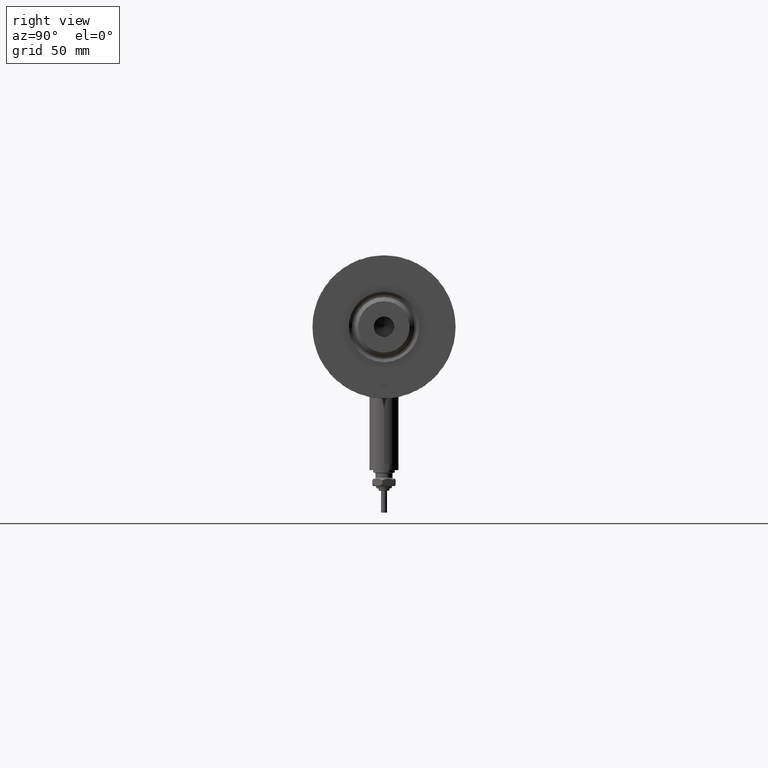
[diagram: clean part render]
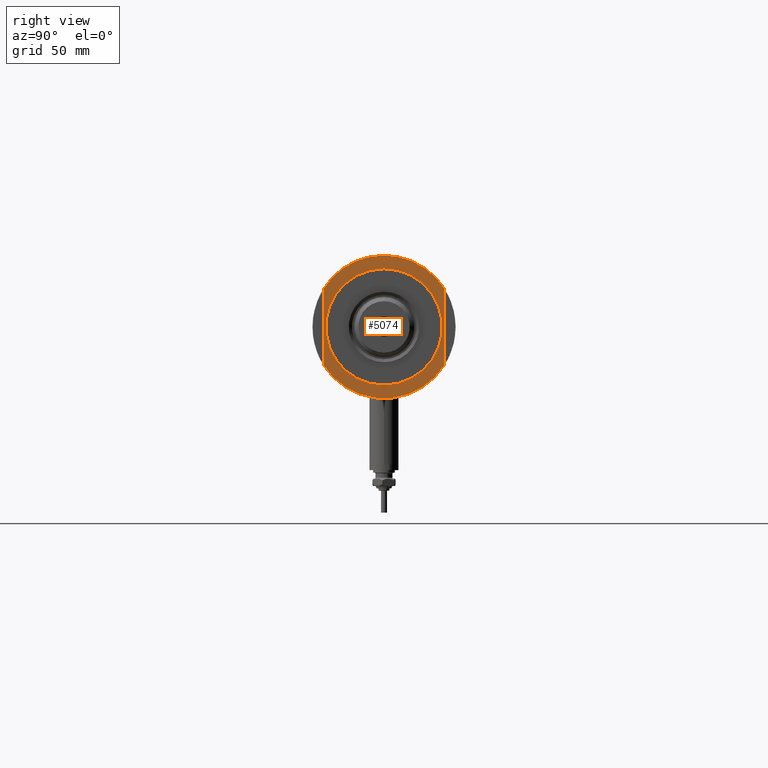
[diagram: same view with one face highlighted and labeled with its STEP entity id]
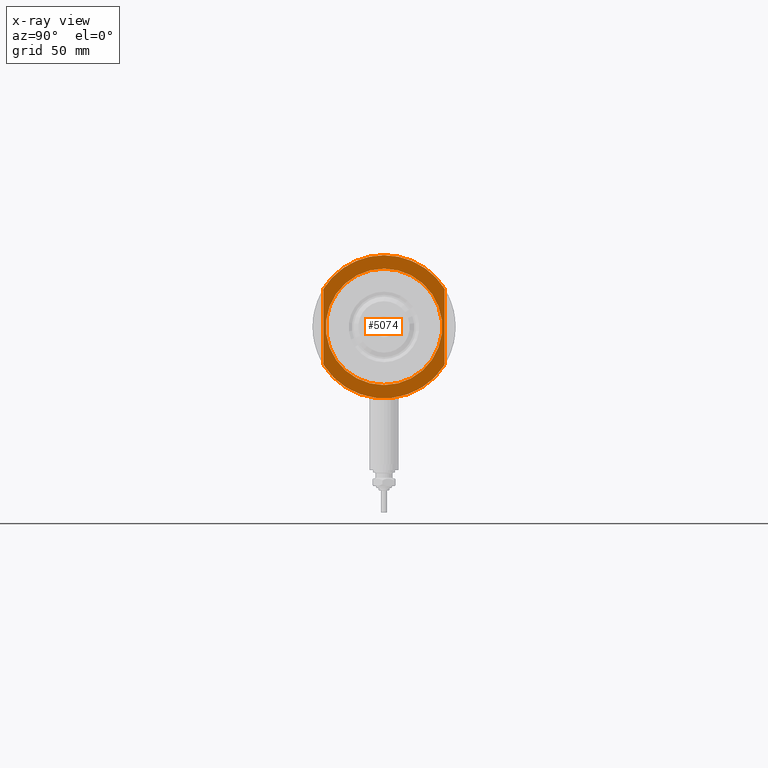
[diagram: x-ray of the same camera — body ghosted, the highlighted face saturated]
A machine part, right view. The second image highlights one B-rep face of the part: STEP entity #5074.
The next image is the same camera in x-ray: the body ghosted, the highlighted face saturated — about 0% of this face is hidden behind the body in this view.
In plain terms, the highlighted planar face has unit normal (1, 0, -0).
Its self-contained STEP definition (entity closure, byte-faithful):
#35 = CARTESIAN_POINT ( 'NONE',  ( -15.66045976336583045, 24.99999999999999645, 21.00000000000000355 ) ) ;
#85 = VERTEX_POINT ( 'NONE', #690 ) ;
#146 = DIRECTION ( 'NONE',  ( 1.000000000000000000, 0.000000000000000000, 0.000000000000000000 ) ) ;
#187 = ORIENTED_EDGE ( 'NONE', *, *, #3417, .F. ) ;
#210 = DIRECTION ( 'NONE',  ( -0.000000000000000000, -0.000000000000000000, -1.000000000000000000 ) ) ;
#276 = DIRECTION ( 'NONE',  ( 1.000000000000000000, 0.000000000000000000, 0.000000000000000000 ) ) ;
#328 = ORIENTED_EDGE ( 'NONE', *, *, #3192, .F. ) ;
#362 = CARTESIAN_POINT ( 'NONE',  ( 15.66045976336583045, -25.00000000000000000, 21.00000000000000355 ) ) ;
#565 = DIRECTION ( 'NONE',  ( 1.000000000000000000, 0.000000000000000000, 0.000000000000000000 ) ) ;
#599 = AXIS2_PLACEMENT_3D ( 'NONE', #3521, #4446, #276 ) ;
#609 = DIRECTION ( 'NONE',  ( 1.000000000000000000, 0.000000000000000000, -0.000000000000000000 ) ) ;
#690 = CARTESIAN_POINT ( 'NONE',  ( -24.00000000000000000, 2.939152317953647894E-15, 21.00000000000000000 ) ) ;
#716 = DIRECTION ( 'NONE',  ( -1.000000000000000000, -0.000000000000000000, -0.000000000000000000 ) ) ;
#787 = CARTESIAN_POINT ( 'NONE',  ( 24.00000000000000000, 0.000000000000000000, 21.00000000000000000 ) ) ;
#814 = CARTESIAN_POINT ( 'NONE',  ( -29.50000000000000355, 0.000000000000000000, 21.00000000000000000 ) ) ;
#881 = CARTESIAN_POINT ( 'NONE',  ( -15.66045976336583045, -24.99999999999999645, 20.99999999999999645 ) ) ;
#981 = ORIENTED_EDGE ( 'NONE', *, *, #1302, .T. ) ;
#1062 = CARTESIAN_POINT ( 'NONE',  ( 0.000000000000000000, 0.000000000000000000, 21.00000000000000000 ) ) ;
#1086 = EDGE_CURVE ( 'NONE', #85, #5595, #1747, .T. ) ;
#1116 = ORIENTED_EDGE ( 'NONE', *, *, #5606, .T. ) ;
#1127 = CARTESIAN_POINT ( 'NONE',  ( 0.000000000000000000, 0.000000000000000000, 21.00000000000000000 ) ) ;
#1302 = EDGE_CURVE ( 'NONE', #4572, #5349, #5664, .T. ) ;
#1451 = FACE_BOUND ( 'NONE', #3151, .T. ) ;
#1531 = DIRECTION ( 'NONE',  ( 1.000000000000000000, 0.000000000000000000, 0.000000000000000000 ) ) ;
#1572 = PLANE ( 'NONE',  #3691 ) ;
#1589 = CARTESIAN_POINT ( 'NONE',  ( -15.66045976336583401, -25.00000000000000000, 21.00000000000000000 ) ) ;
#1747 = CIRCLE ( 'NONE', #599, 24.00000000000000000 ) ;
#1776 = AXIS2_PLACEMENT_3D ( 'NONE', #2996, #210, #5202 ) ;
#1937 = DIRECTION ( 'NONE',  ( 0.000000000000000000, 0.000000000000000000, 1.000000000000000000 ) ) ;
#1980 = DIRECTION ( 'NONE',  ( 1.000000000000000000, 0.000000000000000000, 0.000000000000000000 ) ) ;
#2056 = VECTOR ( 'NONE', #146, 1000.000000000000000 ) ;
#2061 = CIRCLE ( 'NONE', #4728, 29.50000000000000355 ) ;
#2081 = CARTESIAN_POINT ( 'NONE',  ( 15.66045976336583045, 24.99999999999999645, 20.99999999999999645 ) ) ;
#2864 = DIRECTION ( 'NONE',  ( 0.000000000000000000, 0.000000000000000000, 1.000000000000000000 ) ) ;
#2935 = EDGE_CURVE ( 'NONE', #4519, #4572, #4123, .T. ) ;
#2996 = CARTESIAN_POINT ( 'NONE',  ( 0.000000000000000000, 0.000000000000000000, 21.00000000000000000 ) ) ;
#3101 = AXIS2_PLACEMENT_3D ( 'NONE', #4520, #1937, #565 ) ;
#3151 = EDGE_LOOP ( 'NONE', ( #1116, #4730 ) ) ;
#3192 = EDGE_CURVE ( 'NONE', #4093, #5349, #5253, .T. ) ;
#3244 = ORIENTED_EDGE ( 'NONE', *, *, #3622, .T. ) ;
#3265 = DIRECTION ( 'NONE',  ( 0.000000000000000000, 0.000000000000000000, 1.000000000000000000 ) ) ;
#3277 = FACE_OUTER_BOUND ( 'NONE', #5439, .T. ) ;
#3345 = LINE ( 'NONE', #4563, #2056 ) ;
#3359 = CARTESIAN_POINT ( 'NONE',  ( 0.000000000000000000, 0.000000000000000000, 21.00000000000000000 ) ) ;
#3417 = EDGE_CURVE ( 'NONE', #4519, #5262, #3345, .T. ) ;
#3521 = CARTESIAN_POINT ( 'NONE',  ( 0.000000000000000000, 0.000000000000000000, 21.00000000000000000 ) ) ;
#3622 = EDGE_CURVE ( 'NONE', #4093, #5262, #2061, .T. ) ;
#3691 = AXIS2_PLACEMENT_3D ( 'NONE', #3359, #2864, #609 ) ;
#4093 = VERTEX_POINT ( 'NONE', #362 ) ;
#4123 = CIRCLE ( 'NONE', #3101, 29.50000000000000355 ) ;
#4446 = DIRECTION ( 'NONE',  ( -0.000000000000000000, -0.000000000000000000, -1.000000000000000000 ) ) ;
#4519 = VERTEX_POINT ( 'NONE', #35 ) ;
#4520 = CARTESIAN_POINT ( 'NONE',  ( 0.000000000000000000, 0.000000000000000000, 21.00000000000000000 ) ) ;
#4563 = CARTESIAN_POINT ( 'NONE',  ( -15.66045976336583401, 25.00000000000000000, 21.00000000000000000 ) ) ;
#4572 = VERTEX_POINT ( 'NONE', #814 ) ;
#4728 = AXIS2_PLACEMENT_3D ( 'NONE', #1127, #5589, #1980 ) ;
#4730 = ORIENTED_EDGE ( 'NONE', *, *, #1086, .T. ) ;
#5051 = ORIENTED_EDGE ( 'NONE', *, *, #2935, .T. ) ;
#5074 = ADVANCED_FACE ( 'NONE', ( #1451, #3277 ), #1572, .T. ) ;
#5102 = VECTOR ( 'NONE', #716, 1000.000000000000000 ) ;
#5202 = DIRECTION ( 'NONE',  ( 1.000000000000000000, 0.000000000000000000, 0.000000000000000000 ) ) ;
#5253 = LINE ( 'NONE', #1589, #5102 ) ;
#5262 = VERTEX_POINT ( 'NONE', #2081 ) ;
#5277 = AXIS2_PLACEMENT_3D ( 'NONE', #1062, #3265, #1531 ) ;
#5349 = VERTEX_POINT ( 'NONE', #881 ) ;
#5439 = EDGE_LOOP ( 'NONE', ( #328, #3244, #187, #5051, #981 ) ) ;
#5589 = DIRECTION ( 'NONE',  ( 0.000000000000000000, 0.000000000000000000, 1.000000000000000000 ) ) ;
#5595 = VERTEX_POINT ( 'NONE', #787 ) ;
#5606 = EDGE_CURVE ( 'NONE', #5595, #85, #5697, .T. ) ;
#5664 = CIRCLE ( 'NONE', #5277, 29.50000000000000355 ) ;
#5697 = CIRCLE ( 'NONE', #1776, 24.00000000000000000 ) ;